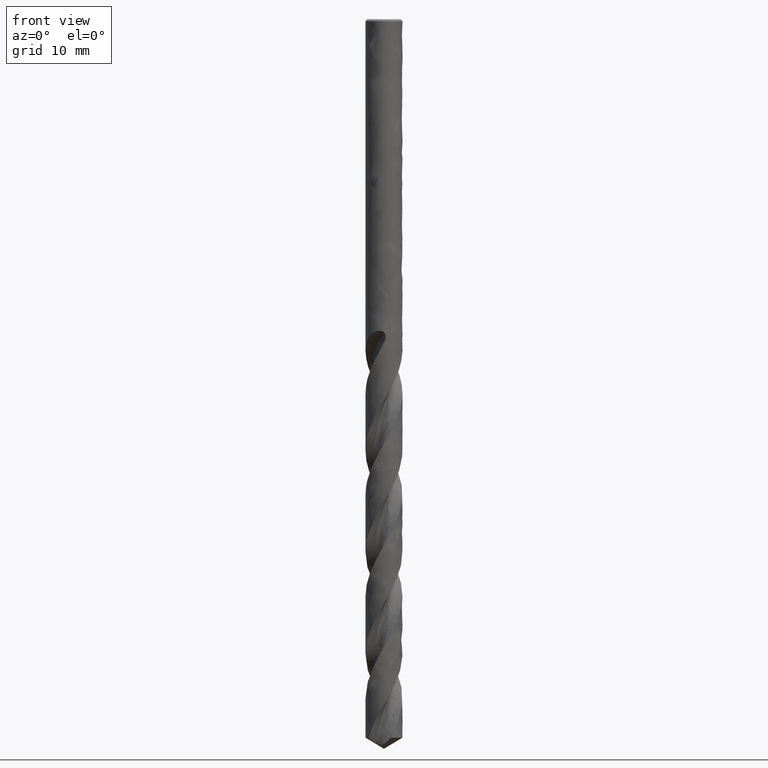
[diagram: clean part render]
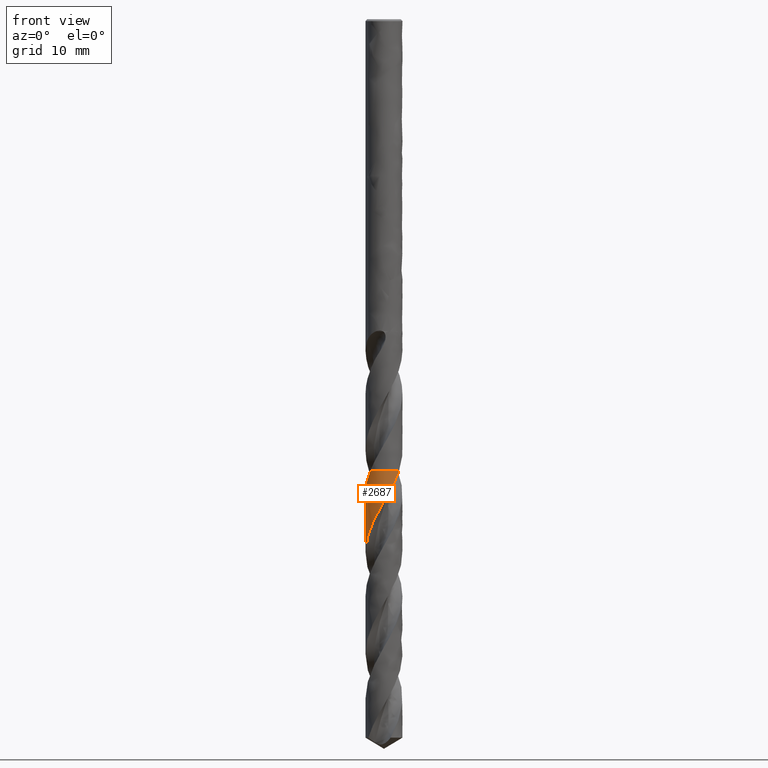
[diagram: same view with one face highlighted and labeled with its STEP entity id]
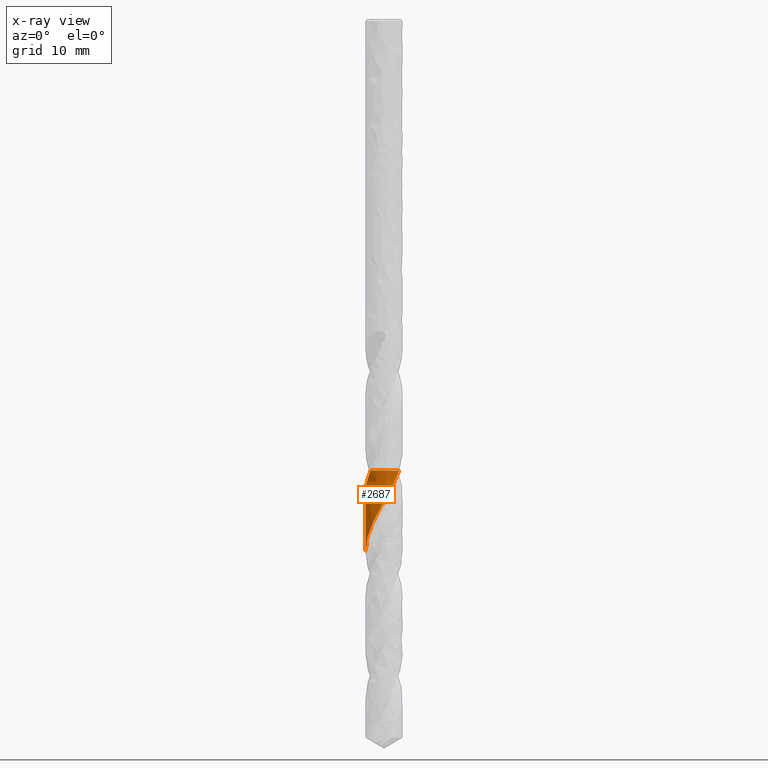
[diagram: x-ray of the same camera — body ghosted, the highlighted face saturated]
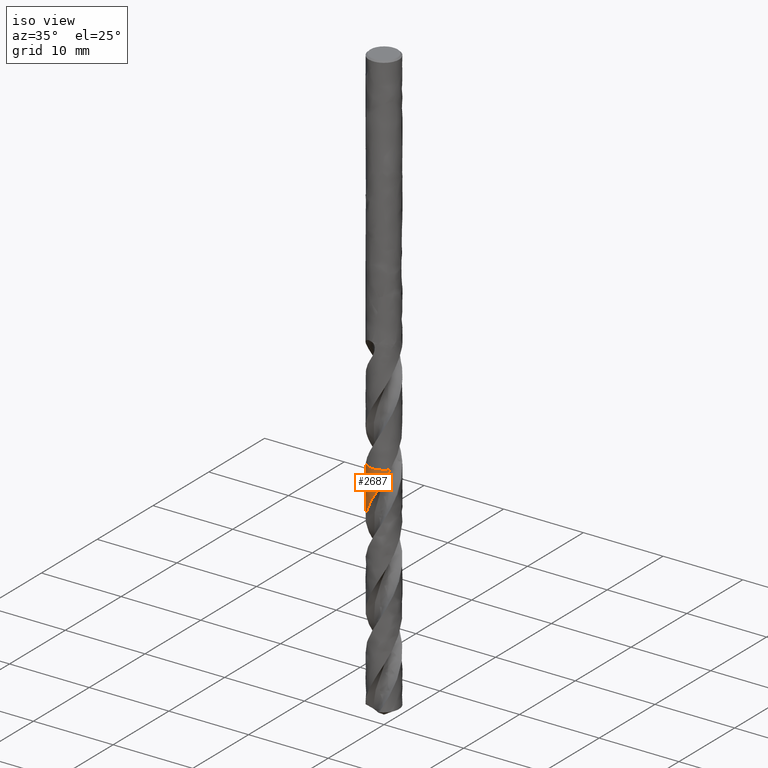
[diagram: same view with one face highlighted and labeled with its STEP entity id]
A machine part, front view. The second image highlights one B-rep face of the part: STEP entity #2687.
The next image is the same camera in x-ray: the body ghosted, the highlighted face saturated — about 0% of this face is hidden behind the body in this view.
A second angle (iso view) of the same face is appended — the face is thin or edge-on in the first view.
In plain terms, the highlighted face is a freeform B-spline surface patch.
Its self-contained STEP definition (entity closure, byte-faithful):
#2516 = VERTEX_POINT('', #2517);
#2517 = CARTESIAN_POINT('', (-1.39203723109916, -1.2931482307675, -46.4));
#2523 = EDGE_CURVE('', #2524, #2516, #2526, .T.);
#2524 = VERTEX_POINT('', #2525);
#2525 = CARTESIAN_POINT('', (1.55364892494496, -1.09369786413678, -46.4));
#2526 = CIRCLE('', #2527, 1.9);
#2527 = AXIS2_PLACEMENT_3D('', #2528, #2529, #2530);
#2528 = CARTESIAN_POINT('', (5.55111512312578E-16, 2.3970913641718E-15, -46.4));
#2529 = DIRECTION('', (3.74939945665465E-33, 6.12323399573677E-17, -1.));
#2530 = DIRECTION('', (-1., 2.94963503036348E-16, 1.43119060362831E-32));
#2687 = ADVANCED_FACE('', (#2688), #2808, .T.);
#2688 = FACE_OUTER_BOUND('', #2689, .T.);
#2689 = EDGE_LOOP('', (#2690, #2691, #2721, #2729));
#2690 = ORIENTED_EDGE('', *, *, #2523, .T.);
#2691 = ORIENTED_EDGE('', *, *, #2692, .T.);
#2692 = EDGE_CURVE('', #2516, #2693, #2695, .T.);
#2693 = VERTEX_POINT('', #2694);
#2694 = CARTESIAN_POINT('', (-1.9, 3.10919753709759E-15, -48.8770491747063));
#2695 = B_SPLINE_CURVE_WITH_KNOTS('', 3, (#2696, #2697, #2698, #2699, #2700, #2701, #2702, #2703, #2704, #2705, #2706, #2707, #2708, #2709, #2710, #2711, #2712, #2713, #2714, #2715, #2716, #2717, #2718, #2719, #2720), .UNSPECIFIED., .F., .U., (4, 3, 3, 3, 3, 3, 3, 3, 4), (9.06011503258379, 9.06120865071772, 9.50439531089174, 9.9473985362767, 10.3902181632748, 10.8328527932078, 11.2752997506589, 11.7175550053489, 11.9160933330551), .UNSPECIFIED.);
#2696 = CARTESIAN_POINT('', (-1.39203723109916, -1.2931482307675, -46.4));
#2697 = CARTESIAN_POINT('', (-1.39216083650182, -1.29301517320052, -46.400316080518));
#2698 = CARTESIAN_POINT('', (-1.392284422647, -1.2928820980418, -46.4006321607294));
#2699 = CARTESIAN_POINT('', (-1.39240798952864, -1.29274900529716, -46.4009482406326));
#2700 = CARTESIAN_POINT('', (-1.44248323232565, -1.23881342471467, -46.529039017736));
#2701 = CARTESIAN_POINT('', (-1.48943611555063, -1.18194542742754, -46.6571868459838));
#2702 = CARTESIAN_POINT('', (-1.53291305114634, -1.1225763126065, -46.7852840288158));
#2703 = CARTESIAN_POINT('', (-1.57637199165505, -1.06323177063937, -46.9133281922728));
#2704 = CARTESIAN_POINT('', (-1.61639347029107, -1.00133958199846, -47.0414293309351));
#2705 = CARTESIAN_POINT('', (-1.65267682941574, -0.937368282753541, -47.1694799173858));
#2706 = CARTESIAN_POINT('', (-1.68894515125441, -0.873423495792672, -47.2974774345139));
#2707 = CARTESIAN_POINT('', (-1.72150815758097, -0.807348960021753, -47.4255317846134));
#2708 = CARTESIAN_POINT('', (-1.75012184728041, -0.739644184504839, -47.5535357356204));
#2709 = CARTESIAN_POINT('', (-1.7787235830187, -0.671967694059313, -47.6814862103273));
#2710 = CARTESIAN_POINT('', (-1.80340279154692, -0.602606746421028, -47.8094933281544));
#2711 = CARTESIAN_POINT('', (-1.82397516506831, -0.532085140944653, -47.9374502397799));
#2712 = CARTESIAN_POINT('', (-1.84453881611718, -0.461593435895938, -48.0653528990049));
#2713 = CARTESIAN_POINT('', (-1.86101607979033, -0.389883892890364, -48.1933119864004));
#2714 = CARTESIAN_POINT('', (-1.87328462929782, -0.31749755532403, -48.3212210763381));
#2715 = CARTESIAN_POINT('', (-1.88554786310639, -0.245142581202594, -48.4490747460151));
#2716 = CARTESIAN_POINT('', (-1.89361619812514, -0.172051397122211, -48.5769846299791));
#2717 = CARTESIAN_POINT('', (-1.89743076548981, -0.0987749470935266, -48.704844713588));
#2718 = CARTESIAN_POINT('', (-1.89914321054835, -0.0658795010933784, -48.7622439799864));
#2719 = CARTESIAN_POINT('', (-1.9, -0.0329378724335417, -48.8196486940615));
#2720 = CARTESIAN_POINT('', (-1.9, 3.51685755395214E-15, -48.8770491747063));
#2721 = ORIENTED_EDGE('', *, *, #2722, .T.);
#2722 = EDGE_CURVE('', #2693, #2723, #2725, .T.);
#2723 = VERTEX_POINT('', #2724);
#2724 = CARTESIAN_POINT('', (-1.9, 3.47122787124907E-15, -54.7894532148514));
#2725 = LINE('', #2726, #2727);
#2726 = CARTESIAN_POINT('', (-1.9, 3.10919753709759E-15, -48.8770491747063));
#2727 = VECTOR('', #2728, 5.91240404014509);
#2728 = DIRECTION('', (0., 3.62030334151478E-16, -5.91240404014509));
#2729 = ORIENTED_EDGE('', *, *, #2730, .T.);
#2730 = EDGE_CURVE('', #2723, #2524, #2731, .T.);
#2731 = B_SPLINE_CURVE_WITH_KNOTS('', 3, (#2732, #2733, #2734, #2735, #2736, #2737, #2738, #2739, #2740, #2741, #2742, #2743, #2744, #2745, #2746, #2747, #2748, #2749, #2750, #2751, #2752, #2753, #2754, #2755, #2756, #2757, #2758, #2759, #2760, #2761, #2762, #2763, #2764, #2765, #2766, #2767, #2768, #2769, #2770, #2771, #2772, #2773, #2774, #2775, #2776, #2777, #2778, #2779, #2780, #2781, #2782, #2783, #2784, #2785, #2786, #2787, #2788, #2789, #2790, #2791, #2792, #2793, #2794, #2795, #2796, #2797, #2798, #2799, #2800, #2801, #2802, #2803, #2804, #2805, #2806, #2807), .UNSPECIFIED., .F., .U., (4, 3, 3, 3, 3, 3, 3, 3, 3, 3, 3, 3, 3, 3, 3, 3, 3, 3, 3, 3, 3, 3, 3, 3, 3, 4), (0., 0.444578558493676, 0.888939306005704, 1.33309244433497, 1.77704612499407, 2.22080675643879, 2.66437920138147, 3.10776691936768, 3.55097206441224, 3.99399554398386, 4.43683704311406, 4.87949501529306, 5.32196664032905, 5.76424773031677, 5.96105542603023, 5.99996930432102, 6.0388960312126, 6.48346298638435, 6.92781189784147, 7.37195287902023, 7.81589400203082, 8.25964159660528, 8.70320044683658, 9.14657393138477, 9.58976411889953, 9.66604923075092), .UNSPECIFIED.);
#2732 = CARTESIAN_POINT('', (-1.9, 3.23281181351951E-15, -54.7894532148514));
#2733 = CARTESIAN_POINT('', (-1.9, -0.0735668844483249, -54.6608101616273));
#2734 = CARTESIAN_POINT('', (-1.89572013419492, -0.147167181960334, -54.5321154007176));
#2735 = CARTESIAN_POINT('', (-1.88719167748648, -0.220244347092729, -54.4034759239127));
#2736 = CARTESIAN_POINT('', (-1.87866739909814, -0.293285709758339, -54.274899471044));
#2737 = CARTESIAN_POINT('', (-1.86589164820224, -0.365864703849086, -54.1462714807703));
#2738 = CARTESIAN_POINT('', (-1.84895993900357, -0.437432445024413, -54.017698607033));
#2739 = CARTESIAN_POINT('', (-1.83203614044582, -0.508966749132354, -53.8891858036539));
#2740 = CARTESIAN_POINT('', (-1.81094623813743, -0.579550016826767, -53.760621590794));
#2741 = CARTESIAN_POINT('', (-1.78584855792081, -0.648648539790375, -53.6321123972467));
#2742 = CARTESIAN_POINT('', (-1.7607621484223, -0.717716032397079, -53.5036609138496));
#2743 = CARTESIAN_POINT('', (-1.73165077233209, -0.785357358815009, -53.3751580651097));
#2744 = CARTESIAN_POINT('', (-1.69873323017325, -0.851061344854261, -53.2467102091518));
#2745 = CARTESIAN_POINT('', (-1.6658300019078, -0.916736760113633, -53.118318207574));
#2746 = CARTESIAN_POINT('', (-1.62909673687345, -0.9805307938189, -52.989874835847));
#2747 = CARTESIAN_POINT('', (-1.58880954882216, -1.0419617159817, -52.8614864681884));
#2748 = CARTESIAN_POINT('', (-1.54853944544323, -1.10336658700445, -52.7331525464541));
#2749 = CARTESIAN_POINT('', (-1.50468531575609, -1.162460869028, -52.6047672300923));
#2750 = CARTESIAN_POINT('', (-1.45757668442764, -1.2187986745205, -52.4764369398027));
#2751 = CARTESIAN_POINT('', (-1.4104876716174, -1.27511301798, -52.3481600930131));
#2752 = CARTESIAN_POINT('', (-1.36010831853221, -1.32871929748669, -52.21983183082));
#2753 = CARTESIAN_POINT('', (-1.30681699666662, -1.37921330374356, -52.0915586061199));
#2754 = CARTESIAN_POINT('', (-1.2535476184702, -1.42968651817674, -51.9633382002487));
#2755 = CARTESIAN_POINT('', (-1.19732521587212, -1.47709120390332, -51.8350663796496));
#2756 = CARTESIAN_POINT('', (-1.13857185548475, -1.5210700608118, -51.7068495816134));
#2757 = CARTESIAN_POINT('', (-1.07984257752765, -1.5650308912151, -51.5786853383942));
#2758 = CARTESIAN_POINT('', (-1.01853659495397, -1.60560449918168, -51.4504697149524));
#2759 = CARTESIAN_POINT('', (-0.955113999652294, -1.64248508293628, -51.3223090623081));
#2760 = CARTESIAN_POINT('', (-0.891717456405239, -1.67935051727957, -51.1942010541245));
#2761 = CARTESIAN_POINT('', (-0.826154393481081, -1.71255598895282, -51.0660417412996));
#2762 = CARTESIAN_POINT('', (-0.758916805933687, -1.74185110777915, -50.9379373052346));
#2763 = CARTESIAN_POINT('', (-0.691707083682281, -1.77113408581954, -50.8098859595341));
#2764 = CARTESIAN_POINT('', (-0.622769313295629, -1.79653386614636, -50.681783428197));
#2765 = CARTESIAN_POINT('', (-0.552620882489551, -1.81785867443997, -50.5537356366877));
#2766 = CARTESIAN_POINT('', (-0.482501982292859, -1.8391745055608, -50.4257417498669));
#2767 = CARTESIAN_POINT('', (-0.411115881042737, -1.85643628163937, -50.2976968201757));
#2768 = CARTESIAN_POINT('', (-0.338998432153409, -1.86951332249818, -50.1697064906475));
#2769 = CARTESIAN_POINT('', (-0.266912038140433, -1.88258473218321, -50.0417712757125));
#2770 = CARTESIAN_POINT('', (-0.194035529212464, -1.8914857757966, -49.9137851285582));
#2771 = CARTESIAN_POINT('', (-0.120915866319595, -1.89614855780663, -49.7858534962862));
#2772 = CARTESIAN_POINT('', (-0.0883788379657713, -1.89822341789851, -49.7289260573197));
#2773 = CARTESIAN_POINT('', (-0.055785068863442, -1.89946073265091, -49.6719943388092));
#2774 = CARTESIAN_POINT('', (-0.0231830670113311, -1.89985855931539, -49.6150676510876));
#2775 = CARTESIAN_POINT('', (-0.0167368234967663, -1.89993721974758, -49.6038117995851));
#2776 = CARTESIAN_POINT('', (-0.0102901343977672, -1.89998307202945, -49.5925559261708));
#2777 = CARTESIAN_POINT('', (-0.00384337596240813, -1.89999611274897, -49.5813001022749));
#2778 = CARTESIAN_POINT('', (0.00260551106637562, -1.90000915777429, -49.5700405619263));
#2779 = CARTESIAN_POINT('', (0.00905450875105461, -1.89998936964909, -49.5587809990452));
#2780 = CARTESIAN_POINT('', (0.0155032403579683, -1.89993674882571, -49.5475214850834));
#2781 = CARTESIAN_POINT('', (0.0891516871742339, -1.89933578693911, -49.4189309705862));
#2782 = CARTESIAN_POINT('', (0.162798709091373, -1.89444502653465, -49.2902885198678));
#2783 = CARTESIAN_POINT('', (0.235886019606121, -1.88530044973072, -49.1617015957693));
#2784 = CARTESIAN_POINT('', (0.308937483487439, -1.87616035800486, -49.0331777388203));
#2785 = CARTESIAN_POINT('', (0.381490254780415, -1.86276304576283, -48.9046020970234));
#2786 = CARTESIAN_POINT('', (0.452994334921044, -1.84520896717135, -48.7760818250619));
#2787 = CARTESIAN_POINT('', (0.524464955177099, -1.82766310290053, -48.6476216933533));
#2788 = CARTESIAN_POINT('', (0.594947269646983, -1.8059497725775, -48.5191099048754));
#2789 = CARTESIAN_POINT('', (0.663907053956606, -1.78023240721729, -48.3906533845337));
#2790 = CARTESIAN_POINT('', (0.732835807182059, -1.75452661436615, -48.2622546681011));
#2791 = CARTESIAN_POINT('', (0.80030073071046, -1.72479901233948, -48.133804349083));
#2792 = CARTESIAN_POINT('', (0.865790728157221, -1.69127360738498, -48.0054092609918));
#2793 = CARTESIAN_POINT('', (0.931252176374972, -1.65776281724954, -47.8770701445134));
#2794 = CARTESIAN_POINT('', (0.994794741438872, -1.62042973611725, -47.7486794326899));
#2795 = CARTESIAN_POINT('', (1.05593737574313, -1.57955571554431, -47.6203439512778));
#2796 = CARTESIAN_POINT('', (1.11705400353718, -1.53869908039556, -47.4920630562938));
#2797 = CARTESIAN_POINT('', (1.1758232653356, -1.49427075450286, -47.3637305532256));
#2798 = CARTESIAN_POINT('', (1.23180057047368, -1.44660545919774, -47.2354532918756));
#2799 = CARTESIAN_POINT('', (1.28775448238806, -1.3989600834817, -47.1072296382987));
#2800 = CARTESIAN_POINT('', (1.34096483997743, -1.34804122707883, -46.9789543651982));
#2801 = CARTESIAN_POINT('', (1.39102935169148, -1.29423233723037, -46.8507343376581));
#2802 = CARTESIAN_POINT('', (1.44107316600977, -1.24044569275793, -46.7225673181384));
#2803 = CARTESIAN_POINT('', (1.48801480204105, -1.18372727509534, -46.5943486848255));
#2804 = CARTESIAN_POINT('', (1.53149949797451, -1.12450401853609, -46.4661852794798));
#2805 = CARTESIAN_POINT('', (1.53898439946051, -1.11431008176109, -46.4441248639123));
#2806 = CARTESIAN_POINT('', (1.54636897036146, -1.10403937981784, -46.4220603115781));
#2807 = CARTESIAN_POINT('', (1.55364892494496, -1.09369786413678, -46.4));
#2808 = (
   BOUNDED_SURFACE ()
   B_SPLINE_SURFACE (1, 2, ((#2809, #2810, #2811, #2812, #2813), (#2814, #2815, #2816, #2817, #2818)), .UNSPECIFIED., .F., .F., .U.)
   B_SPLINE_SURFACE_WITH_KNOTS ((2, 2), (3, 2, 3), (-0.831581791843387, -0.550150956055015), (0.59897950179889, 0.75, 1.), .UNSPECIFIED.)
   GEOMETRIC_REPRESENTATION_ITEM ()
   RATIONAL_B_SPLINE_SURFACE (((0.859899250937531, 0.823068480700263, 1., 0.707106781186547, 1.), (0.859899250937531, 0.823068480700263, 1., 0.707106781186547, 1.)))
   REPRESENTATION_ITEM ('')
   SURFACE ()
);
#2809 = CARTESIAN_POINT('', (1.55364892494496, -1.09369786413678, -54.7894532148514));
#2810 = CARTESIAN_POINT('', (0.986049057507879, -1.9, -54.7894532148514));
#2811 = CARTESIAN_POINT('', (3.43705194300513E-16, -1.9, -54.7894532148514));
#2812 = CARTESIAN_POINT('', (-1.9, -1.9, -54.7894532148514));
#2813 = CARTESIAN_POINT('', (-1.9, 3.47122787124907E-15, -54.7894532148514));
#2814 = CARTESIAN_POINT('', (1.55364892494496, -1.09369786413678, -46.4));
#2815 = CARTESIAN_POINT('', (0.986049057507879, -1.9, -46.4));
#2816 = CARTESIAN_POINT('', (3.43705194300513E-16, -1.9, -46.4));
#2817 = CARTESIAN_POINT('', (-1.9, -1.9, -46.4));
#2818 = CARTESIAN_POINT('', (-1.9, 2.95752201994086E-15, -46.4));